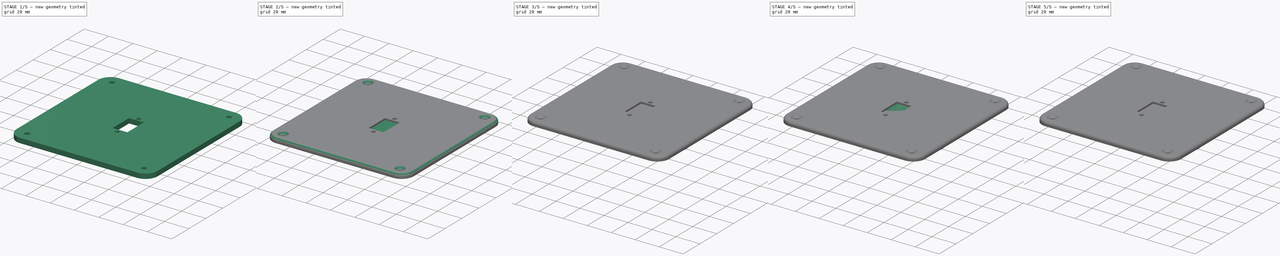
[diagram: build sequence overview — one tinted view per stage of 5, left to right]
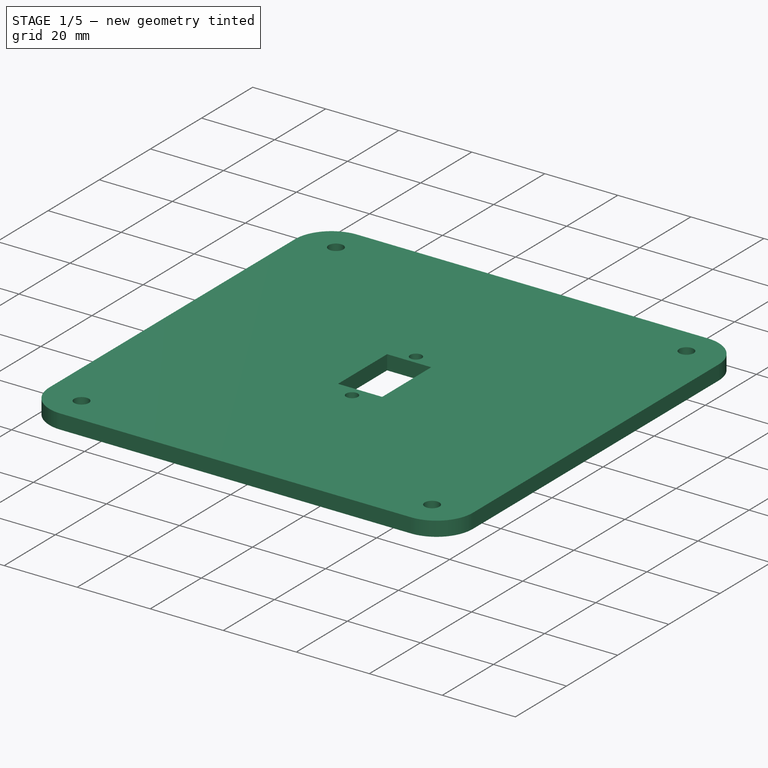
[diagram: stage 1 of 5 — iso view after this stage's code; geometry added in this stage tinted green]
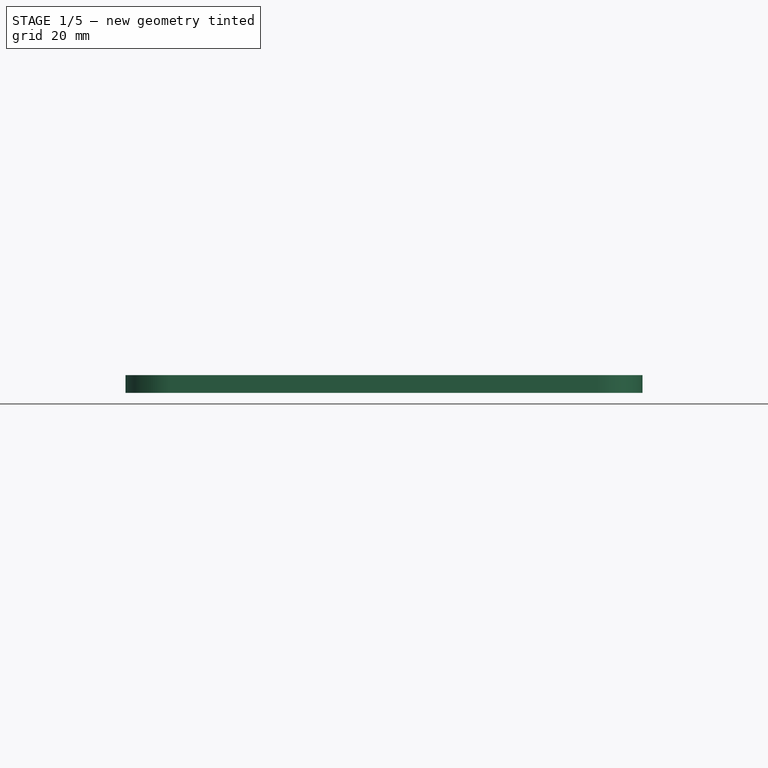
[diagram: stage 1 of 5 — front view after this stage's code; geometry added in this stage tinted green]
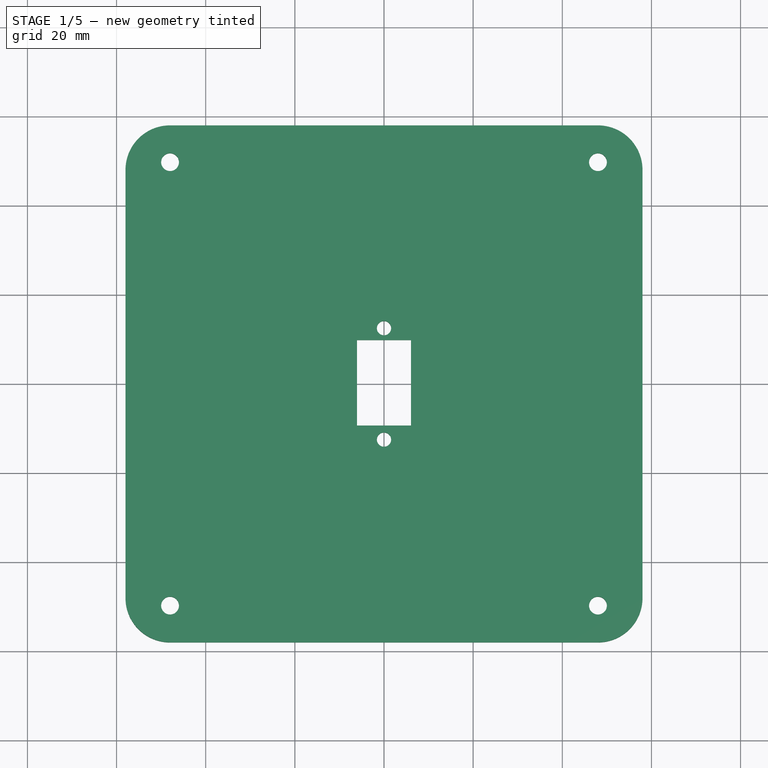
[diagram: stage 1 of 5 — top view after this stage's code; geometry added in this stage tinted green]
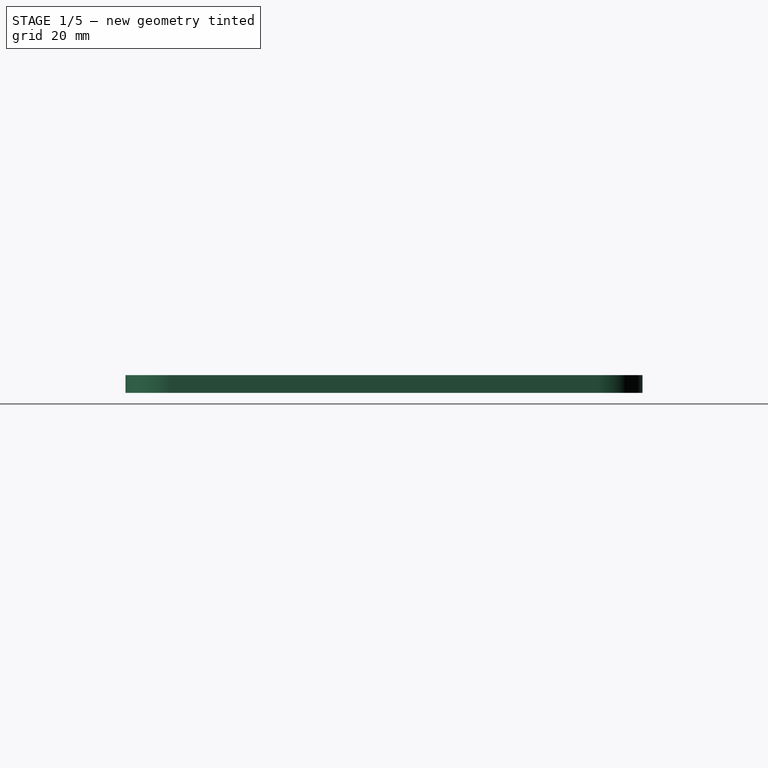
[diagram: stage 1 of 5 — right view after this stage's code; geometry added in this stage tinted green]
FCSTD DOCUMENT  (FreeCAD 1.0R39109 (Git))
Label: InsideRadioMouhnts
License: All rights reserved
LicenseURL: http://en.wikipedia.org/wiki/All_rights_reserved
objects: Sketcher::SketchObject×9, PartDesign::Pocket×5, PartDesign::Pad×4, PartDesign::Chamfer×4, PartDesign::Fillet×3, PartDesign::Body×3, App::Part×3
note: 69 computed .brp shape members not serialized (recipe doc carries the construction recipe); baked Part::Feature solids carry a one-line shape summary decoded from their .brp

FEATURE [PartDesign::Body] Body001
  AllowCompound = false
  Group = -> [Sketch002,Sketch003,Pad001,Pocket001,Chamfer001,Sketch004,Pad002,Sketch005,Pocket002,Sketch006,Pocket003,Chamfer002]
  Origin = -> Origin003
  Tip = -> Chamfer002
FEATURE [App::Part] Part001
  Group = -> [Body001]
  Origin = -> Origin002
FEATURE [Sketcher::SketchObject] Sketch007
  ArcFitTolerance = 1e-06
  AttachmentSupport = -> [XY_Plane005]
  FullyConstrained = true
  MakeInternals = false
  MapMode = 5
  sketch-geometry (4):
    g0: LineSegment StartX=-58 StartY=58 StartZ=0 EndX=-58 EndY=-58 EndZ=0
    g1: LineSegment StartX=-58 StartY=-58 StartZ=0 EndX=58 EndY=-58 EndZ=0
    g2: LineSegment StartX=58 StartY=-58 StartZ=0 EndX=58 EndY=58 EndZ=0
    g3: LineSegment StartX=58 StartY=58 StartZ=0 EndX=-58 EndY=58 EndZ=0
  constraints (11):
    c: Coincident(g0,g1)
    c: Coincident(g1,g2)
    c: Coincident(g2,g3)
    c: Coincident(g3,g0)
    c: Vertical(g0)
    c: Vertical(g2)
    c: Horizontal(g1)
    c: Horizontal(g3)
    c: Distance(g0,g2) = 116
    c: Distance(g1,g3) = 116
    c: Symmetric(g0,g2,g-1)
FEATURE [PartDesign::Pad] Pad003
  Direction = (0,0,1)
  Length = 4
  Length2 = 10
  Profile = -> Sketch007
  ReferenceAxis = -> Sketch007 [N_Axis]
  Suppressed = false
  Type = 0
FEATURE [Sketcher::SketchObject] Sketch008
  ArcFitTolerance = 1e-06
  AttachmentSupport = -> [Pad003]
  FullyConstrained = true
  MakeInternals = false
  MapMode = 5
  Placement = pos=(0,0,4) rot=(0,0,1;0rad)
  sketch-geometry (10):
    g0: LineSegment StartX=-6.05 StartY=9.85 StartZ=0 EndX=-6.05 EndY=-9.35 EndZ=0
    g1: LineSegment StartX=-6.05 StartY=-9.35 StartZ=0 EndX=6.05 EndY=-9.35 EndZ=0
    g2: LineSegment StartX=6.05 StartY=-9.35 StartZ=0 EndX=6.05 EndY=9.85 EndZ=0
    g3: LineSegment StartX=6.05 StartY=9.85 StartZ=0 EndX=-6.05 EndY=9.85 EndZ=0
    g4: Circle CenterX=0 CenterY=12.5 CenterZ=0 NormalX=0 NormalY=0 NormalZ=1 AngleXU=0 Radius=1.6
    g5: Circle CenterX=0 CenterY=-12.5 CenterZ=0 NormalX=0 NormalY=0 NormalZ=1 AngleXU=0 Radius=1.6
    g6: Circle CenterX=-48 CenterY=49.75 CenterZ=0 NormalX=0 NormalY=0 NormalZ=1 AngleXU=0 Radius=2
    g7: Circle CenterX=-48 CenterY=-49.75 CenterZ=0 NormalX=0 NormalY=0 NormalZ=1 AngleXU=0 Radius=2
    g8: Circle CenterX=48 CenterY=49.75 CenterZ=0 NormalX=0 NormalY=0 NormalZ=1 AngleXU=0 Radius=2
    g9: Circle CenterX=48 CenterY=-49.75 CenterZ=0 NormalX=0 NormalY=0 NormalZ=1 AngleXU=0 Radius=2
  constraints (30):
    c: Coincident(g0,g1)
    c: Coincident(g1,g2)
    c: Coincident(g2,g3)
    c: Coincident(g3,g0)
    c: Vertical(g0)
    c: Vertical(g2)
    c: Horizontal(g1)
    c: Horizontal(g3)
    c: Distance(g0,g2) = 12.1
    c: Distance(g1,g3) = 19.2
    c: Diameter(g4) = 3.2
    c: Diameter(g5) = 3.2
    c: DistanceY(g5,g4) = 25
    c: DistanceY(g-1,g4) = 12.5
    c: DistanceY(g-1,g0) = 9.85
    c: DistanceX(g0,g-1) = 6.05
    c: DistanceX(g4,g5) = 0
    c: DistanceX(g4,g2) = 6.05
    c: DistanceY(g8,g6) = 0
    c: DistanceY(g7,g9) = 0
    c: Equal(g8,g9)
    c: Equal(g8,g6)
    c: Equal(g8,g7)
    c: Diameter(g8) = 4
    c: DistanceX(g6,g7) = 0
    c: DistanceX(g9,g8) = 0
    c: DistanceX(g6,g-1) = 48
    c: DistanceX(g-1,g8) = 48
    c: DistanceY(g-1,g6) = 49.75
    c: DistanceY(g7,g-1) = 49.75
FEATURE [PartDesign::Pocket] Pocket004
  BaseFeature = -> Pad003
  Direction = (0,0,-1)
  Length = 5
  Length2 = 5
  Profile = -> Sketch008
  ReferenceAxis = -> Sketch008 [N_Axis]
  Suppressed = false
  Type = 1
FEATURE [PartDesign::Fillet] Fillet001
  Base = -> Pocket004 [Edge2,Edge8,Edge5,Edge1]
  BaseFeature = -> Pocket004
  Radius = 10
  Refine = true
  SupportTransform = false
  Suppressed = false
  UseAllEdges = false
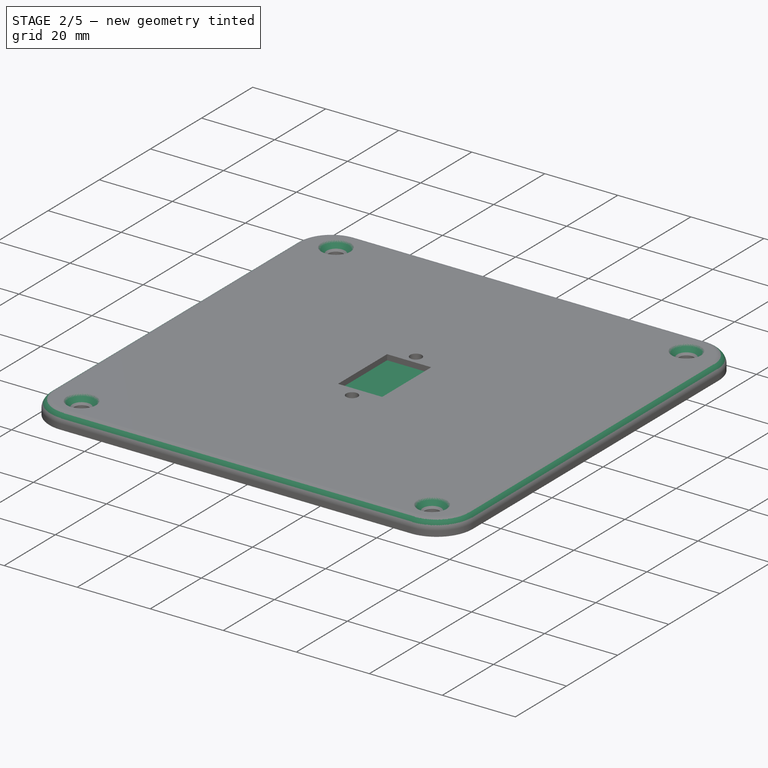
[diagram: stage 2 of 5 — iso view after this stage's code; geometry added in this stage tinted green]
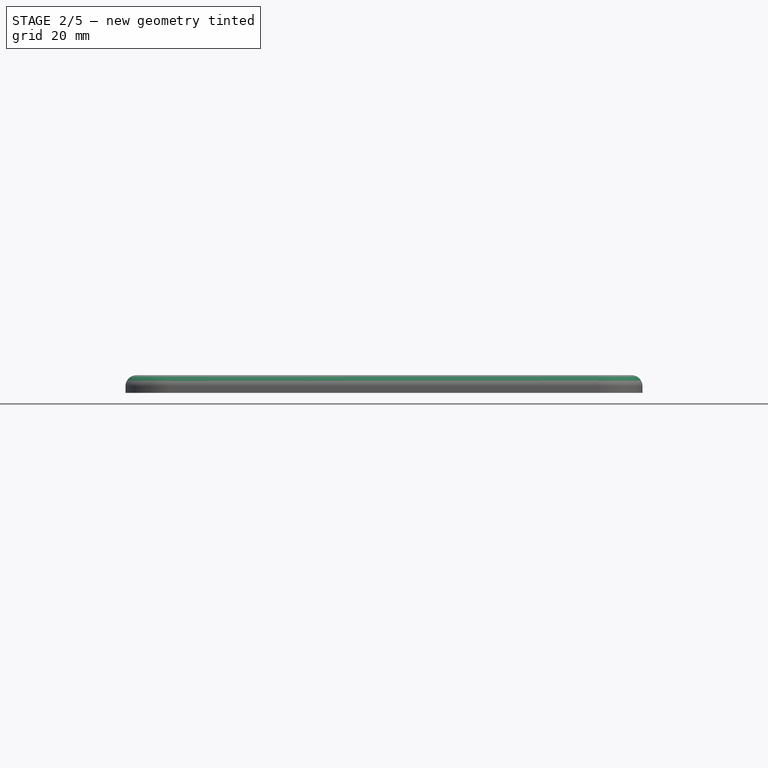
[diagram: stage 2 of 5 — front view after this stage's code; geometry added in this stage tinted green]
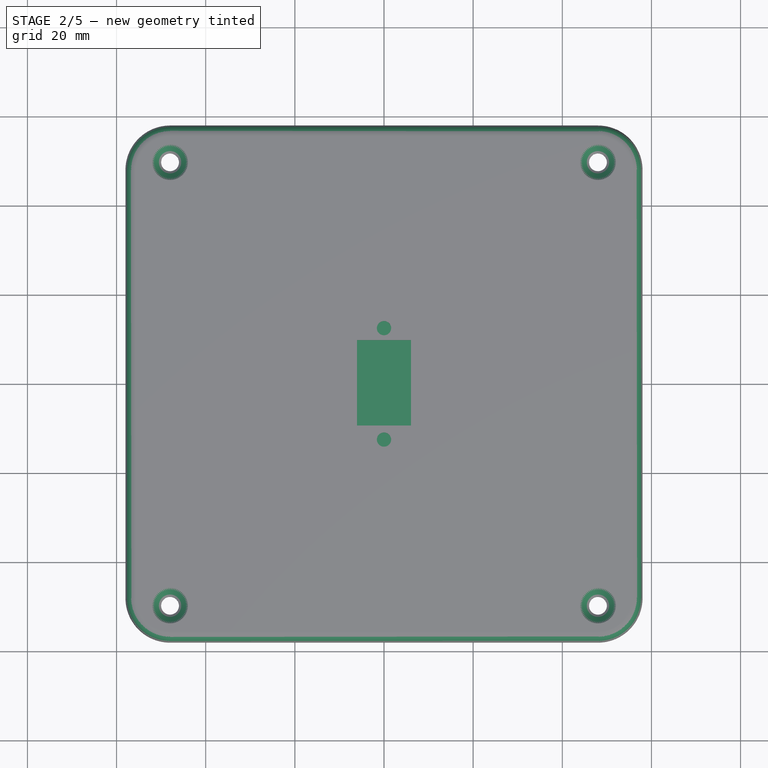
[diagram: stage 2 of 5 — top view after this stage's code; geometry added in this stage tinted green]
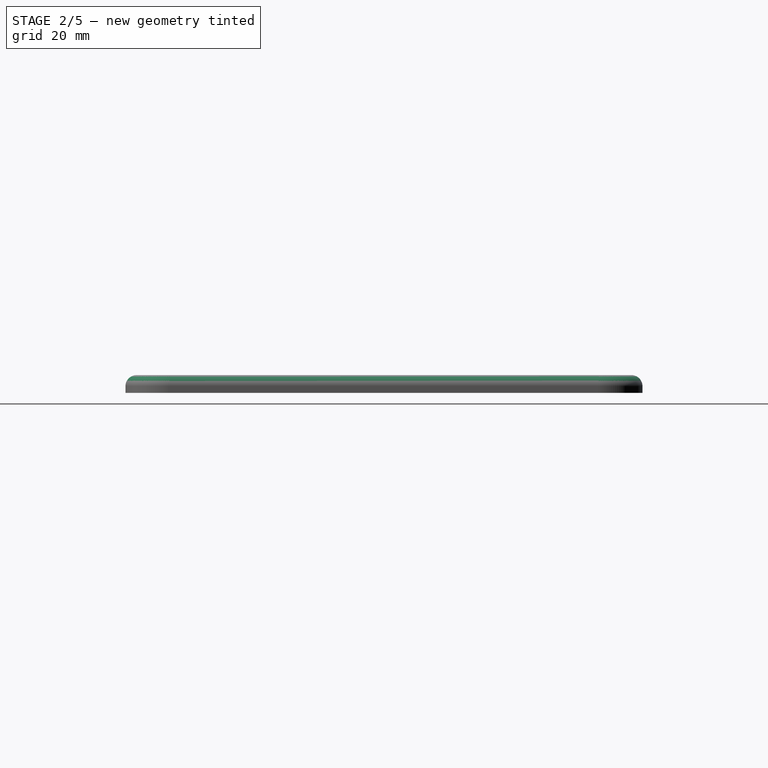
[diagram: stage 2 of 5 — right view after this stage's code; geometry added in this stage tinted green]
FEATURE [PartDesign::Body] Body
  AllowCompound = false
  Group = -> [Sketch,Pad,Sketch001,Pocket,Chamfer,Fillet]
  Origin = -> Origin001
  Tip = -> Fillet
FEATURE [App::Part] Part
  Group = -> [Body]
  Origin = -> Origin
FEATURE [Sketcher::SketchObject] Sketch003
  ArcFitTolerance = 1e-06
  AttachmentSupport = -> [XY_Plane003]
  FullyConstrained = true
  MakeInternals = false
  MapMode = 5
  sketch-geometry (4):
    g0: LineSegment StartX=-27.5 StartY=17.5 StartZ=0 EndX=-27.5 EndY=-17.5 EndZ=0
    g1: LineSegment StartX=-27.5 StartY=-17.5 StartZ=0 EndX=27.5 EndY=-17.5 EndZ=0
    g2: LineSegment StartX=27.5 StartY=-17.5 StartZ=0 EndX=27.5 EndY=17.5 EndZ=0
    g3: LineSegment StartX=27.5 StartY=17.5 StartZ=0 EndX=-27.5 EndY=17.5 EndZ=0
  constraints (11):
    c: Coincident(g0,g1)
    c: Coincident(g1,g2)
    c: Coincident(g2,g3)
    c: Coincident(g3,g0)
    c: Vertical(g0)
    c: Vertical(g2)
    c: Horizontal(g1)
    c: Horizontal(g3)
    c: Distance(g0,g2) = 55
    c: Distance(g1,g3) = 35
    c: Symmetric(g0,g2,g-1)
FEATURE [PartDesign::Pad] Pad001
  Direction = (0,0,1)
  Length = 2.5
  Length2 = 10
  Profile = -> Sketch003
  ReferenceAxis = -> Sketch003 [N_Axis]
  Suppressed = false
  Type = 0
FEATURE [PartDesign::Chamfer] Chamfer003
  Angle = 45
  Base = -> Fillet001 [Edge32,Edge40,Edge34,Edge31]
  BaseFeature = -> Fillet001
  ChamferType = 0
  FlipDirection = false
  Refine = true
  Size = 2
  Size2 = 1
  SupportTransform = false
  Suppressed = false
  UseAllEdges = false
FEATURE [PartDesign::Fillet] Fillet002
  Base = -> Chamfer003 [Edge5,Edge7,Edge9,Edge8,Edge6,Edge4,Edge2,Edge3]
  BaseFeature = -> Chamfer003
  Radius = 2.5
  Refine = true
  SupportTransform = false
  Suppressed = false
  UseAllEdges = false
FEATURE [PartDesign::Body] Body002
  AllowCompound = false
  Group = -> [Sketch007,Pad003,Sketch008,Pocket004,Fillet001,Chamfer003,Fillet002]
  Origin = -> Origin005
  Tip = -> Fillet002
FEATURE [App::Part] Part002  label="CO2Cover"
  Group = -> [Body002]
  Origin = -> Origin004
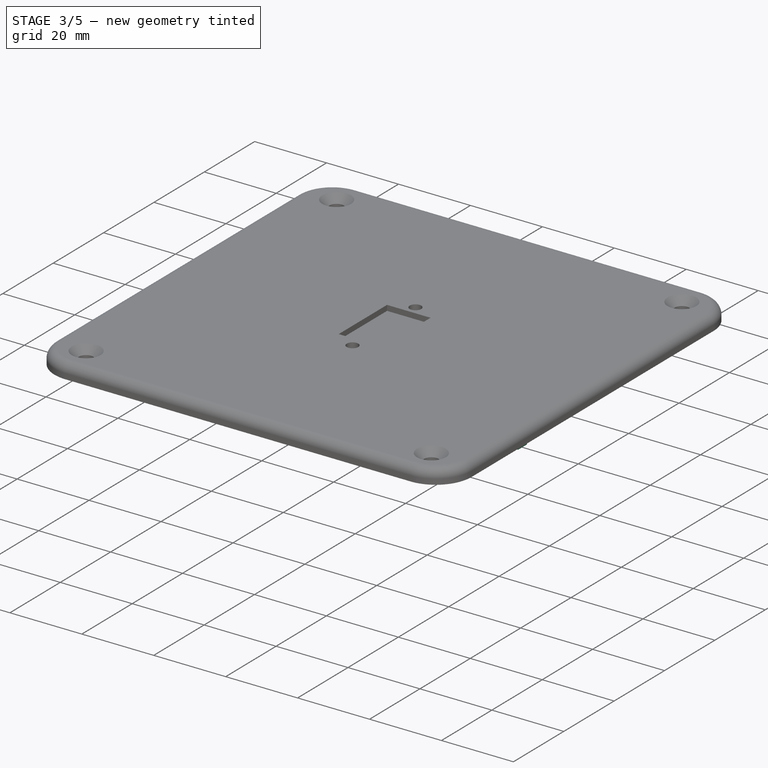
[diagram: stage 3 of 5 — iso view after this stage's code; geometry added in this stage tinted green]
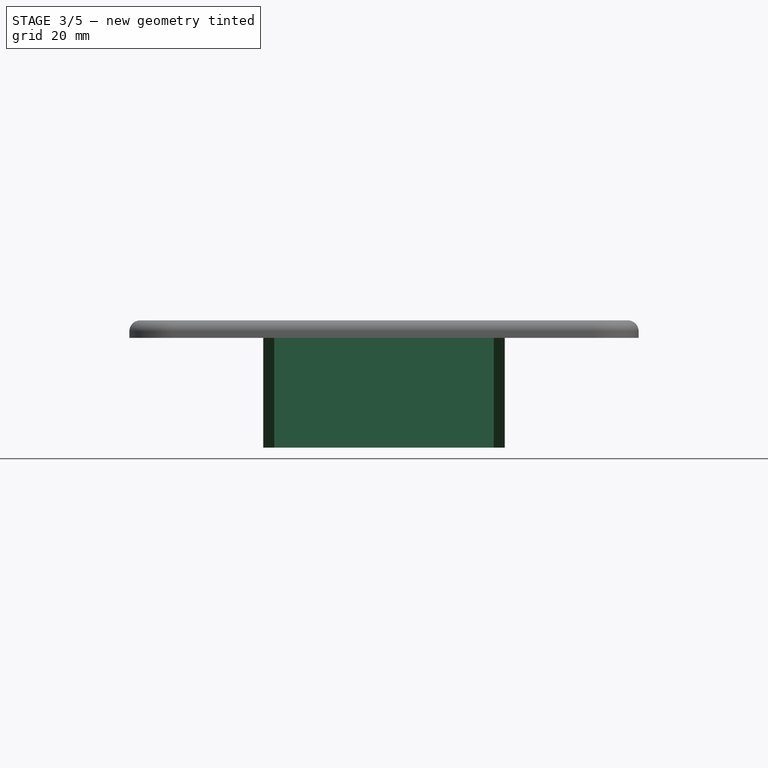
[diagram: stage 3 of 5 — front view after this stage's code; geometry added in this stage tinted green]
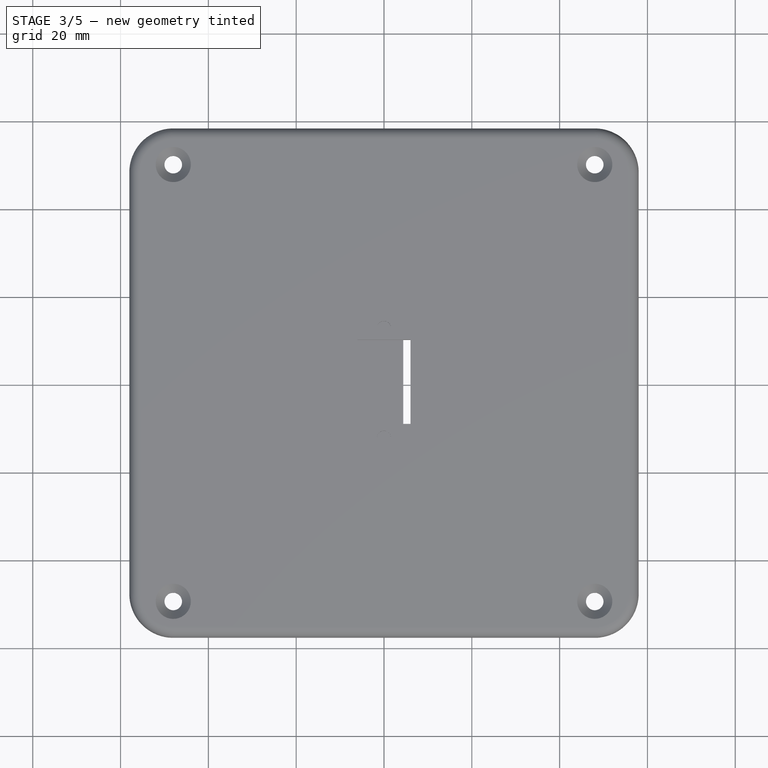
[diagram: stage 3 of 5 — top view after this stage's code; geometry added in this stage tinted green]
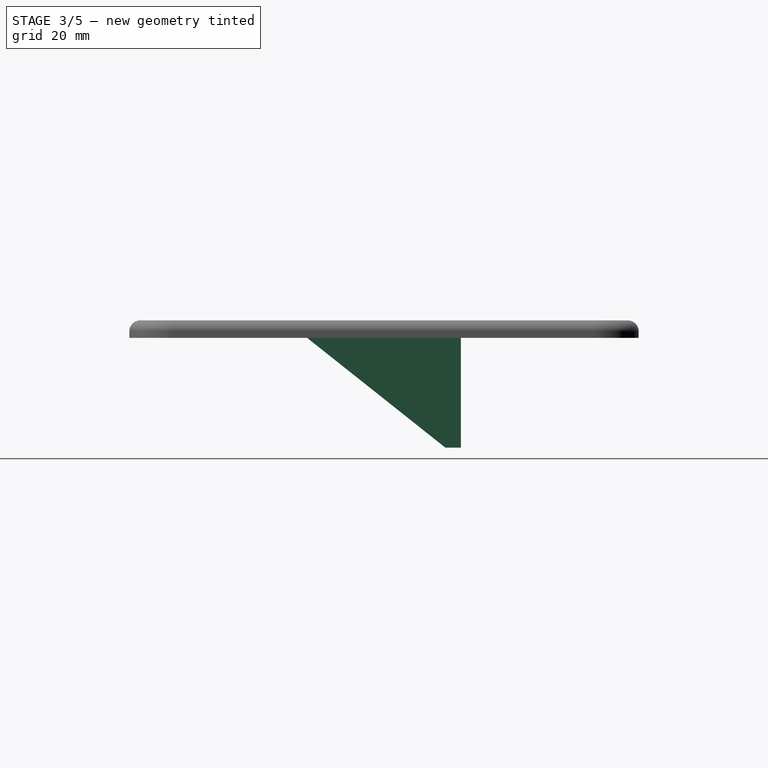
[diagram: stage 3 of 5 — right view after this stage's code; geometry added in this stage tinted green]
FEATURE [Sketcher::SketchObject] Sketch002
  ArcFitTolerance = 1e-06
  AttachmentSupport = -> [Pad001]
  FullyConstrained = true
  MakeInternals = false
  MapMode = 5
  Placement = pos=(0,0,2.5) rot=(0,0,1;0rad)
  sketch-geometry (12):
    g0: LineSegment StartX=4.376 StartY=9.85 StartZ=0 EndX=4.376 EndY=-9.35 EndZ=0
    g1: LineSegment StartX=4.376 StartY=-9.35 StartZ=0 EndX=16.476 EndY=-9.35 EndZ=0
    g2: LineSegment StartX=16.476 StartY=-9.35 StartZ=0 EndX=16.476 EndY=9.85 EndZ=0
    g3: LineSegment StartX=16.476 StartY=9.85 StartZ=0 EndX=4.376 EndY=9.85 EndZ=0
    g4: Circle CenterX=10.426 CenterY=12.5 CenterZ=0 NormalX=0 NormalY=0 NormalZ=1 AngleXU=0 Radius=1.6
    g5: Circle CenterX=10.426 CenterY=-12.5 CenterZ=0 NormalX=0 NormalY=0 NormalZ=1 AngleXU=0 Radius=1.6
    g6: LineSegment StartX=-15.535 StartY=7.875 StartZ=0 EndX=-15.535 EndY=-7.875 EndZ=0
    g7: LineSegment StartX=-15.535 StartY=-7.875 StartZ=0 EndX=-7.235 EndY=-7.875 EndZ=0
    g8: LineSegment StartX=-7.235 StartY=-7.875 StartZ=0 EndX=-7.235 EndY=7.875 EndZ=0
    g9: LineSegment StartX=-7.235 StartY=7.875 StartZ=0 EndX=-15.535 EndY=7.875 EndZ=0
    g10: Circle CenterX=-11.385 CenterY=10.25 CenterZ=0 NormalX=0 NormalY=0 NormalZ=1 AngleXU=0 Radius=1.35
    g11: Circle CenterX=-11.385 CenterY=-10.25 CenterZ=0 NormalX=0 NormalY=0 NormalZ=1 AngleXU=0 Radius=1.35
  constraints (36):
    c: Coincident(g0,g1)
    c: Coincident(g1,g2)
    c: Coincident(g2,g3)
    c: Coincident(g3,g0)
    c: Vertical(g0)
    c: Vertical(g2)
    c: Horizontal(g1)
    c: Horizontal(g3)
    c: Distance(g0,g2) = 12.1
    c: Distance(g1,g3) = 19.2
    c: Diameter(g4) = 3.2
    c: Diameter(g5) = 3.2
    c: DistanceY(g5,g4) = 25
    c: DistanceY(g-1,g4) = 12.5
    c: Coincident(g6,g7)
    c: Coincident(g7,g8)
    c: Coincident(g8,g9)
    c: Coincident(g9,g6)
    c: Vertical(g6)
    c: Vertical(g8)
    c: Horizontal(g7)
    c: Horizontal(g9)
    c: Distance(g6,g8) = 8.3
    c: Distance(g7,g9) = 15.75
    c: DistanceY(g-1,g6) = 7.875
    c: DistanceY(g-1,g0) = 9.85
    c: DistanceX(g8,g0) = 11.611
    c: Diameter(g10) = 2.7
    c: Diameter(g11) = 2.7
    c: DistanceY(g11,g10) = 20.5
    c: DistanceX(g10,g11) = 0
    c: DistanceY(g-1,g10) = 10.25
    c: DistanceX(g11,g0) = 15.761
    c: DistanceX(g4,g5) = 0
    c: DistanceX(g4,g2) = 6.05
    c: DistanceX(g8,g-1) = 7.235
FEATURE [PartDesign::Pocket] Pocket001
  BaseFeature = -> Pad001
  Direction = (0,0,-1)
  Length = 5
  Length2 = 5
  Profile = -> Sketch002
  ReferenceAxis = -> Sketch002 [N_Axis]
  Suppressed = false
  Type = 1
FEATURE [PartDesign::Chamfer] Chamfer001
  Angle = 45
  Base = -> Pocket001 [Edge31,Edge25]
  BaseFeature = -> Pocket001
  ChamferType = 0
  FlipDirection = false
  Size = 1
  Size2 = 1
  SupportTransform = false
  Suppressed = false
  UseAllEdges = false
FEATURE [Sketcher::SketchObject] Sketch004
  ArcFitTolerance = 1e-06
  AttachmentSupport = -> [Chamfer001]
  FullyConstrained = true
  MakeInternals = false
  MapMode = 5
  Placement = pos=(0,0,0) rot=(1,0,0;3.14159rad)
  sketch-geometry (8):
    g0: LineSegment StartX=-27.5 StartY=17.5 StartZ=0 EndX=-27.5 EndY=-17.5 EndZ=0
    g1: LineSegment StartX=-27.5 StartY=-17.5 StartZ=0 EndX=27.5 EndY=-17.5 EndZ=0
    g2: LineSegment StartX=27.5 StartY=-17.5 StartZ=0 EndX=27.5 EndY=17.5 EndZ=0
    g3: LineSegment StartX=27.5 StartY=17.5 StartZ=0 EndX=25 EndY=17.5 EndZ=0
    g4: LineSegment StartX=25 StartY=17.5 StartZ=0 EndX=25 EndY=-15 EndZ=0
    g5: LineSegment StartX=25 StartY=-15 StartZ=0 EndX=-25 EndY=-15 EndZ=0
    g6: LineSegment StartX=-25 StartY=-15 StartZ=0 EndX=-25 EndY=17.5 EndZ=0
    g7: LineSegment StartX=-25 StartY=17.5 StartZ=0 EndX=-27.5 EndY=17.5 EndZ=0
  constraints (24):
    c: Vertical(g0)
    c: Coincident(g0,g1)
    c: Horizontal(g1)
    c: Coincident(g1,g2)
    c: Vertical(g2)
    c: Coincident(g2,g3)
    c: Horizontal(g3)
    c: Coincident(g3,g4)
    c: Vertical(g4)
    c: Coincident(g4,g5)
    c: Horizontal(g5)
    c: Coincident(g5,g6)
    c: Vertical(g6)
    c: Coincident(g6,g7)
    c: Coincident(g7,g0)
    c: Horizontal(g7)
    c: DistanceX(g7,g7) = 2.5
    c: DistanceX(g3,g3) = 2.5
    c: DistanceX(g0,g2) = 55
    c: DistanceX(g0,g-1) = 27.5
    c: DistanceY(g-1,g0) = 17.5
    c: DistanceY(g3,g6) = 0
    c: DistanceY(g0,g0) = 35
    c: DistanceY(g6,g6) = 32.5
FEATURE [PartDesign::Pad] Pad002
  BaseFeature = -> Chamfer001
  Direction = (0,0,-1)
  Length = 25
  Length2 = 10
  Profile = -> Sketch004
  ReferenceAxis = -> Sketch004 [N_Axis]
  Suppressed = false
  Type = 0
FEATURE [Sketcher::SketchObject] Sketch005
  ArcFitTolerance = 1e-06
  AttachmentSupport = -> [Pad002]
  FullyConstrained = true
  MakeInternals = false
  MapMode = 5
  Placement = pos=(-27.5,0,0) rot=(0.57735,-0.57735,-0.57735;2.0944rad)
  sketch-geometry (4):
    g0: LineSegment StartX=17.5 StartY=0 StartZ=0 EndX=-14.518 EndY=-25.425 EndZ=0
    g1: LineSegment StartX=-14.518 StartY=-25.425 StartZ=0 EndX=18.872 EndY=-25.425 EndZ=0
    g2: LineSegment StartX=18.872 StartY=-25.425 StartZ=0 EndX=18.872 EndY=0 EndZ=0
    g3: LineSegment StartX=18.872 StartY=0 StartZ=0 EndX=17.5 EndY=0 EndZ=0
  constraints (12):
    c: PointOnObject(g0,g-1)
    c: Coincident(g0,g1)
    c: Horizontal(g1)
    c: Coincident(g1,g2)
    c: PointOnObject(g2,g-1)
    c: Vertical(g2)
    c: Coincident(g2,g3)
    c: Coincident(g3,g0)
    c: DistanceX(g1,g1) = 33.39
    c: DistanceX(g-1,g1) = 18.872
    c: DistanceY(g2,g2) = 25.425
    c: DistanceX(g-1,g0) = 17.5
FEATURE [PartDesign::Pocket] Pocket002
  BaseFeature = -> Pad002
  Direction = (1,0,0)
  Length = 5
  Length2 = 5
  Profile = -> Sketch005
  ReferenceAxis = -> Sketch005 [N_Axis]
  Suppressed = false
  Type = 1
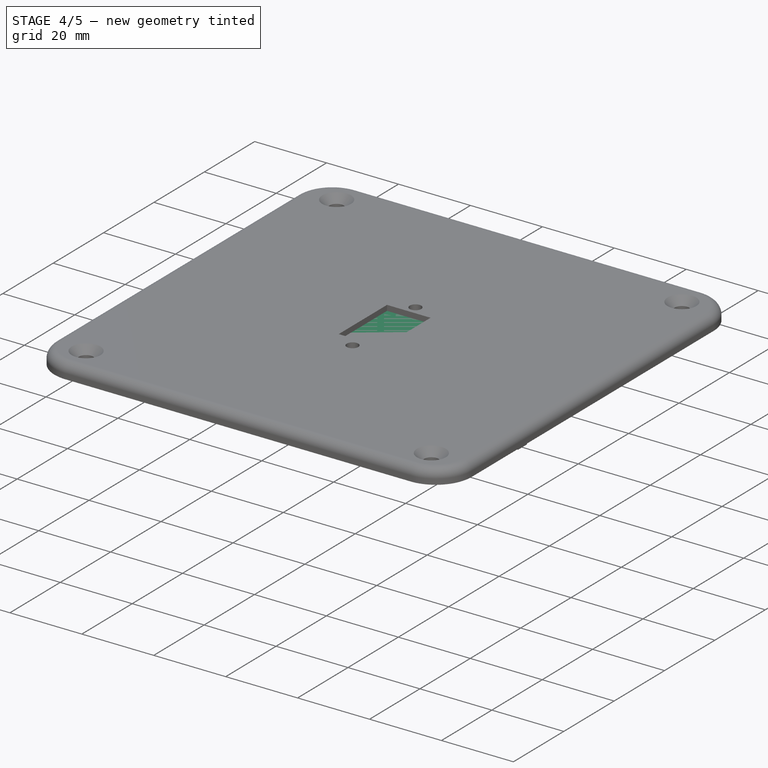
[diagram: stage 4 of 5 — iso view after this stage's code; geometry added in this stage tinted green]
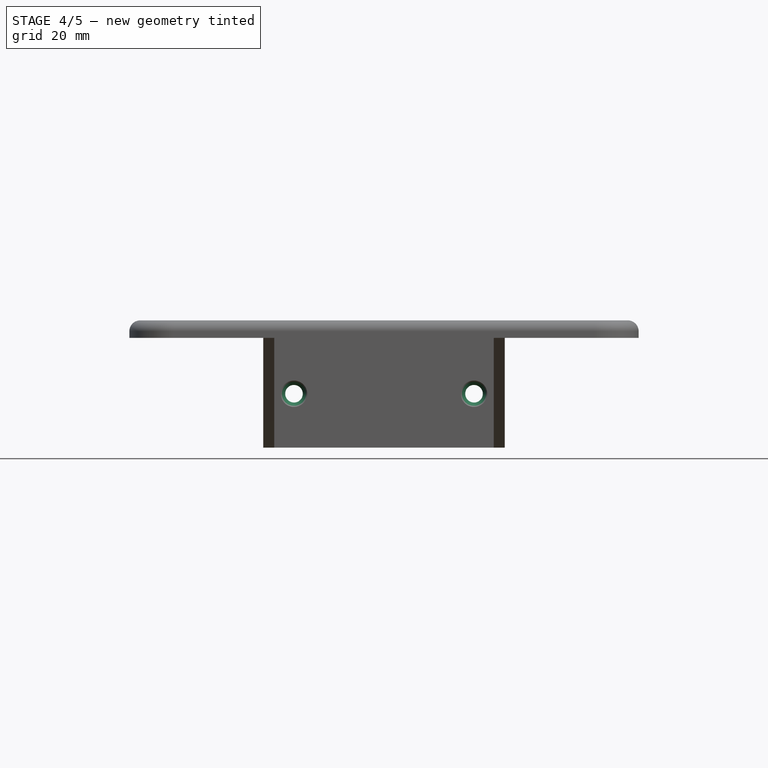
[diagram: stage 4 of 5 — front view after this stage's code; geometry added in this stage tinted green]
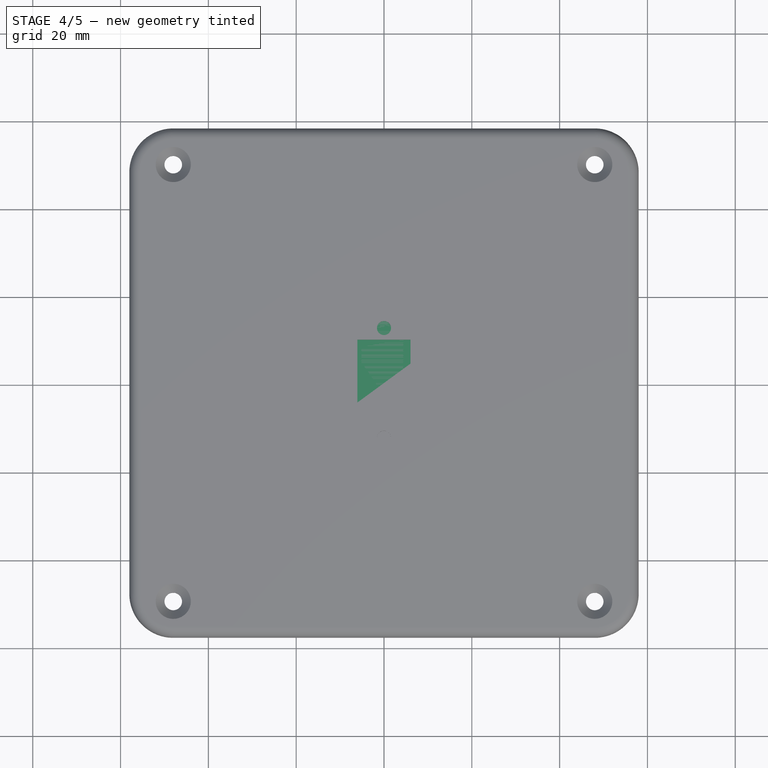
[diagram: stage 4 of 5 — top view after this stage's code; geometry added in this stage tinted green]
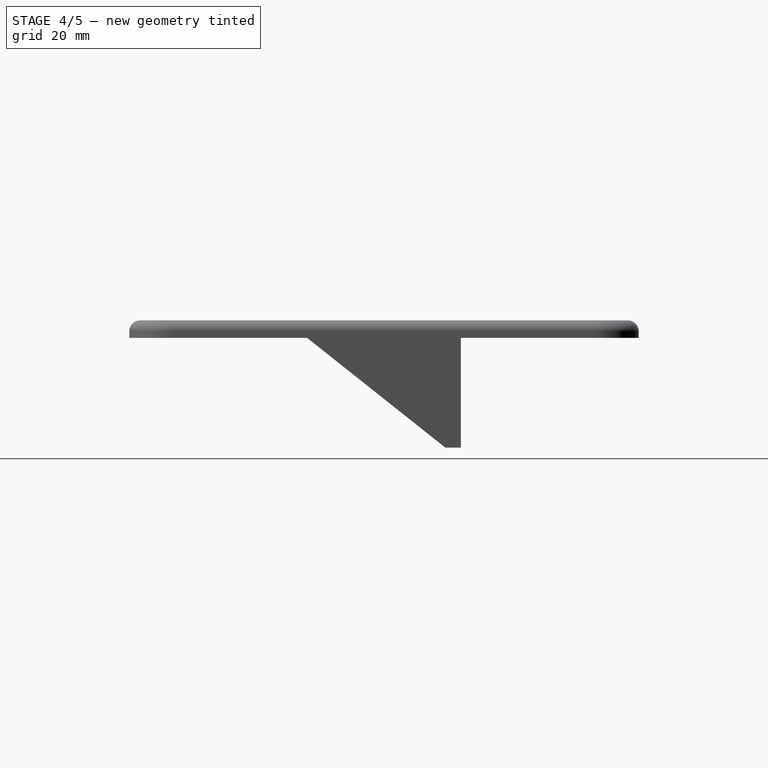
[diagram: stage 4 of 5 — right view after this stage's code; geometry added in this stage tinted green]
FEATURE [Sketcher::SketchObject] Sketch
  ArcFitTolerance = 1e-06
  AttachmentSupport = -> [XY_Plane001]
  FullyConstrained = true
  MakeInternals = false
  MapMode = 5
  sketch-geometry (4):
    g0: LineSegment StartX=-37.5 StartY=27.5 StartZ=0 EndX=-37.5 EndY=-27.5 EndZ=0
    g1: LineSegment StartX=-37.5 StartY=-27.5 StartZ=0 EndX=37.5 EndY=-27.5 EndZ=0
    g2: LineSegment StartX=37.5 StartY=-27.5 StartZ=0 EndX=37.5 EndY=27.5 EndZ=0
    g3: LineSegment StartX=37.5 StartY=27.5 StartZ=0 EndX=-37.5 EndY=27.5 EndZ=0
  constraints (11):
    c: Coincident(g0,g1)
    c: Coincident(g1,g2)
    c: Coincident(g2,g3)
    c: Coincident(g3,g0)
    c: Vertical(g0)
    c: Vertical(g2)
    c: Horizontal(g1)
    c: Horizontal(g3)
    c: Distance(g0,g2) = 75
    c: Distance(g1,g3) = 55
    c: Symmetric(g0,g2,g-1)
FEATURE [PartDesign::Pad] Pad
  Direction = (0,0,1)
  Length = 2.5
  Length2 = 10
  Profile = -> Sketch
  ReferenceAxis = -> Sketch [N_Axis]
  Suppressed = false
  Type = 0
FEATURE [Sketcher::SketchObject] Sketch006
  ArcFitTolerance = 1e-06
  AttachmentSupport = -> [Pocket002]
  FullyConstrained = true
  MakeInternals = false
  MapMode = 5
  Placement = pos=(0,15,0) rot=(1,0,0;1.5708rad)
  sketch-geometry (2):
    g0: Circle CenterX=-20.5 CenterY=-12.72 CenterZ=0 NormalX=0 NormalY=0 NormalZ=1 AngleXU=0 Radius=2
    g1: Circle CenterX=20.5 CenterY=-12.72 CenterZ=0 NormalX=0 NormalY=0 NormalZ=1 AngleXU=0 Radius=2
  constraints (6):
    c: Diameter(g0) = 4
    c: Diameter(g1) = 4
    c: DistanceY(g1,g0) = 0
    c: DistanceX(g0,g1) = 41
    c: DistanceX(g-1,g1) = 20.5
    c: DistanceY(g0,g-1) = 12.72
FEATURE [PartDesign::Pocket] Pocket003
  BaseFeature = -> Pocket002
  Direction = (0,1,-2e-16)
  Length = 5
  Length2 = 5
  Profile = -> Sketch006
  ReferenceAxis = -> Sketch006 [N_Axis]
  Suppressed = false
  Type = 1
FEATURE [PartDesign::Chamfer] Chamfer002
  Angle = 45
  Base = -> Pocket003 [Edge76,Edge74]
  BaseFeature = -> Pocket003
  ChamferType = 0
  FlipDirection = false
  Size = 1
  Size2 = 1
  SupportTransform = false
  Suppressed = false
  UseAllEdges = false
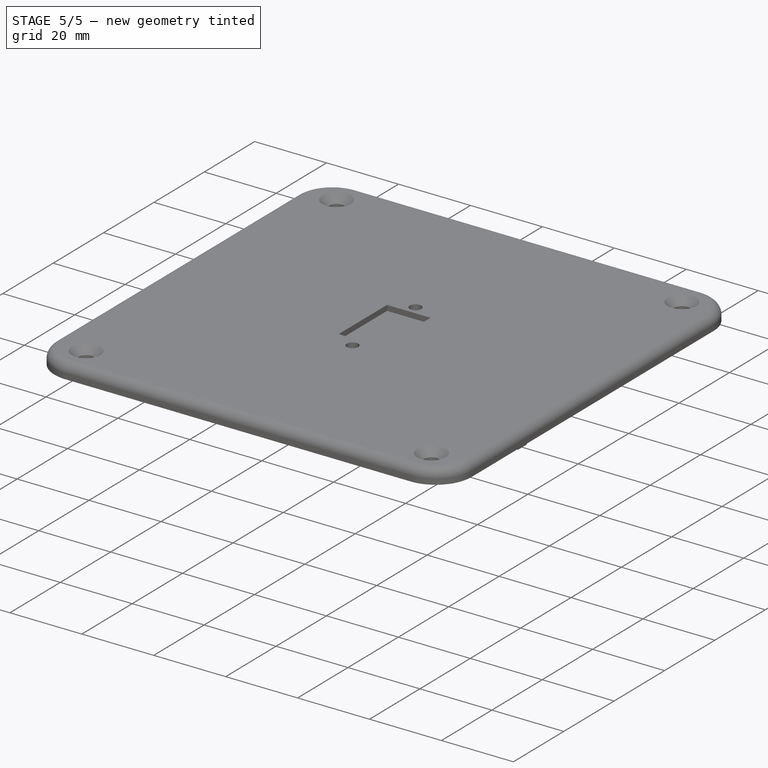
[diagram: stage 5 of 5 — iso view after this stage's code; geometry added in this stage tinted green]
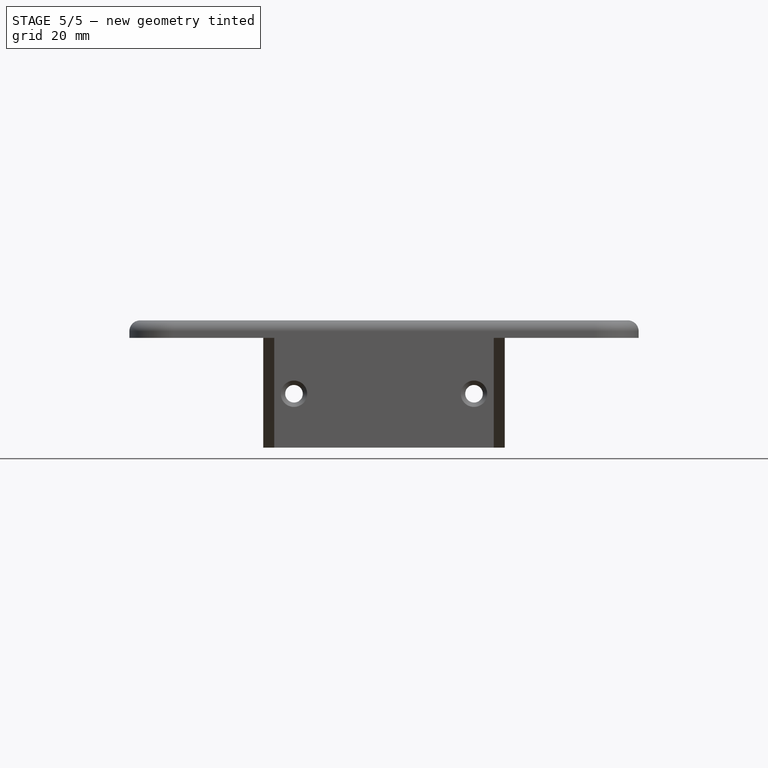
[diagram: stage 5 of 5 — front view after this stage's code; geometry added in this stage tinted green]
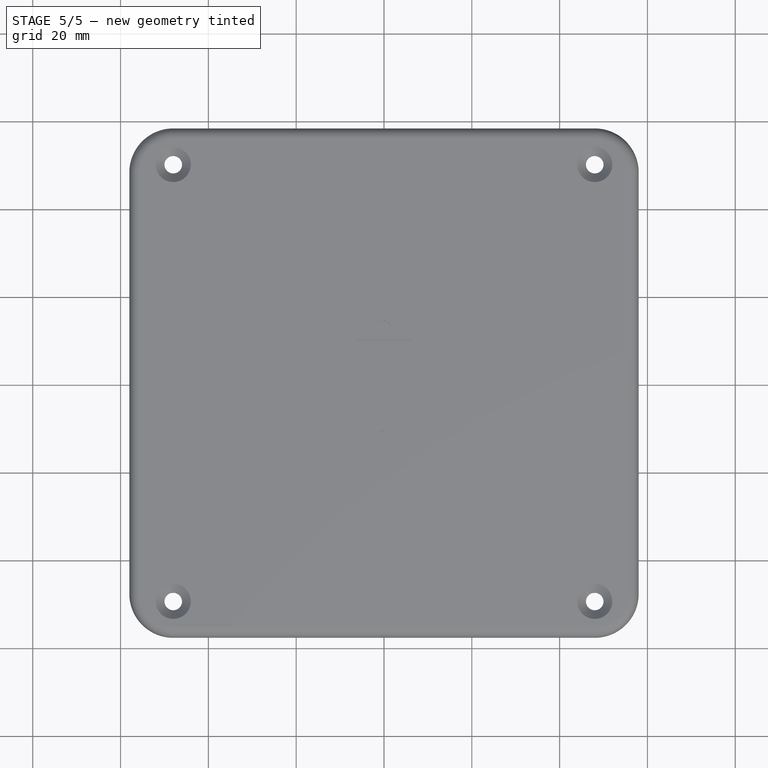
[diagram: stage 5 of 5 — top view after this stage's code; geometry added in this stage tinted green]
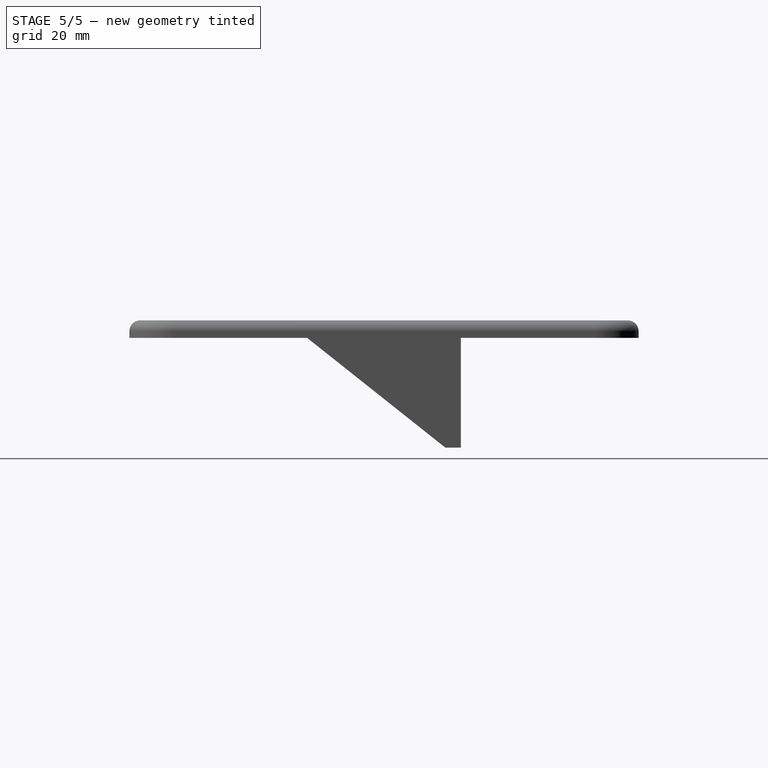
[diagram: stage 5 of 5 — right view after this stage's code; geometry added in this stage tinted green]
FEATURE [Sketcher::SketchObject] Sketch001
  ArcFitTolerance = 1e-06
  AttachmentSupport = -> [Pad]
  FullyConstrained = true
  MakeInternals = false
  MapMode = 5
  Placement = pos=(0,0,2.5) rot=(0,0,1;0rad)
  sketch-geometry (17):
    g0: Circle CenterX=22 CenterY=0 CenterZ=0 NormalX=0 NormalY=0 NormalZ=1 AngleXU=0 Radius=8.1
    g1: LineSegment StartX=-8.578 StartY=9.85 StartZ=0 EndX=-8.578 EndY=-9.35 EndZ=0
    g2: LineSegment StartX=-8.578 StartY=-9.35 StartZ=0 EndX=3.522 EndY=-9.35 EndZ=0
    g3: LineSegment StartX=3.522 StartY=-9.35 StartZ=0 EndX=3.522 EndY=9.85 EndZ=0
    g4: LineSegment StartX=3.522 StartY=9.85 StartZ=0 EndX=-8.578 EndY=9.85 EndZ=0
    g5: Circle CenterX=-2.528 CenterY=12.5 CenterZ=0 NormalX=0 NormalY=0 NormalZ=1 AngleXU=0 Radius=1.6
    g6: Circle CenterX=-2.528 CenterY=-12.5 CenterZ=0 NormalX=0 NormalY=0 NormalZ=1 AngleXU=0 Radius=1.6
    g7: LineSegment StartX=-28.489 StartY=7.875 StartZ=0 EndX=-28.489 EndY=-7.875 EndZ=0
    g8: LineSegment StartX=-28.489 StartY=-7.875 StartZ=0 EndX=-20.189 EndY=-7.875 EndZ=0
    g9: LineSegment StartX=-20.189 StartY=-7.875 StartZ=0 EndX=-20.189 EndY=7.875 EndZ=0
    g10: LineSegment StartX=-20.189 StartY=7.875 StartZ=0 EndX=-28.489 EndY=7.875 EndZ=0
    g11: Circle CenterX=-24.339 CenterY=10.25 CenterZ=0 NormalX=0 NormalY=0 NormalZ=1 AngleXU=0 Radius=1.35
    g12: Circle CenterX=-24.339 CenterY=-10.25 CenterZ=0 NormalX=0 NormalY=0 NormalZ=1 AngleXU=0 Radius=1.35
    g13: Circle CenterX=-33.5 CenterY=23.5 CenterZ=0 NormalX=0 NormalY=0 NormalZ=1 AngleXU=0 Radius=1.6
    g14: Circle CenterX=-33.5 CenterY=-23.5 CenterZ=0 NormalX=0 NormalY=0 NormalZ=1 AngleXU=0 Radius=1.6
    g15: Circle CenterX=32 CenterY=23.5 CenterZ=0 NormalX=0 NormalY=0 NormalZ=1 AngleXU=0 Radius=1.6
    g16: Circle CenterX=32 CenterY=-23.5 CenterZ=0 NormalX=0 NormalY=0 NormalZ=1 AngleXU=0 Radius=1.6
  constraints (51):
    c: Diameter(g0) = 16.2
    c: Coincident(g1,g2)
    c: Coincident(g2,g3)
    c: Coincident(g3,g4)
    c: Coincident(g4,g1)
    c: Vertical(g1)
    c: Vertical(g3)
    c: Horizontal(g2)
    c: Horizontal(g4)
    c: Distance(g1,g3) = 12.1
    c: Distance(g2,g4) = 19.2
    c: Diameter(g5) = 3.2
    c: Diameter(g6) = 3.2
    c: DistanceY(g6,g5) = 25
    c: DistanceY(g-1,g5) = 12.5
    c: Coincident(g7,g8)
    c: Coincident(g8,g9)
    c: Coincident(g9,g10)
    c: Coincident(g10,g7)
    c: Vertical(g7)
    c: Vertical(g9)
    c: Horizontal(g8)
    c: Horizontal(g10)
    c: Distance(g7,g9) = 8.3
    c: Distance(g8,g10) = 15.75
    c: DistanceY(g-1,g7) = 7.875
    c: DistanceY(g-1,g1) = 9.85
    c: DistanceX(g1,g-1) = 8.578
    c: DistanceX(g9,g1) = 11.611
    c: Diameter(g11) = 2.7
    c: Diameter(g12) = 2.7
    c: DistanceY(g12,g11) = 20.5
    c: DistanceX(g11,g12) = 0
    c: DistanceY(g-1,g11) = 10.25
    c: DistanceX(g12,g1) = 15.761
    c: DistanceX(g2,g0) = 18.478
    c: DistanceX(g5,g6) = 0
    c: DistanceX(g5,g3) = 6.05
    c: DistanceY(g-1,g0) = 0
    c: DistanceY(g15,g13) = 0
    c: DistanceY(g14,g16) = 0
    c: Equal(g15,g16)
    c: Equal(g15,g13)
    c: Equal(g15,g14)
    c: Diameter(g15) = 3.2
    c: DistanceX(g13,g14) = 0
    c: DistanceX(g16,g15) = 0
    c: DistanceX(g13,g-1) = 33.5
    c: DistanceX(g-1,g15) = 32
    c: DistanceY(g-1,g13) = 23.5
    c: DistanceY(g14,g-1) = 23.5
FEATURE [PartDesign::Pocket] Pocket
  BaseFeature = -> Pad
  Direction = (0,0,-1)
  Length = 5
  Length2 = 5
  Profile = -> Sketch001
  ReferenceAxis = -> Sketch001 [N_Axis]
  Suppressed = false
  Type = 1
FEATURE [PartDesign::Chamfer] Chamfer
  Angle = 45
  Base = -> Pocket [Edge44,Edge46,Edge30,Edge33,Edge38,Edge31]
  BaseFeature = -> Pocket
  ChamferType = 0
  FlipDirection = false
  Size = 1
  Size2 = 1
  SupportTransform = false
  Suppressed = false
  UseAllEdges = false
FEATURE [PartDesign::Fillet] Fillet
  Base = -> Chamfer [Edge2,Edge3,Edge5,Edge4]
  BaseFeature = -> Chamfer
  Radius = 1
  SupportTransform = false
  Suppressed = false
  UseAllEdges = false
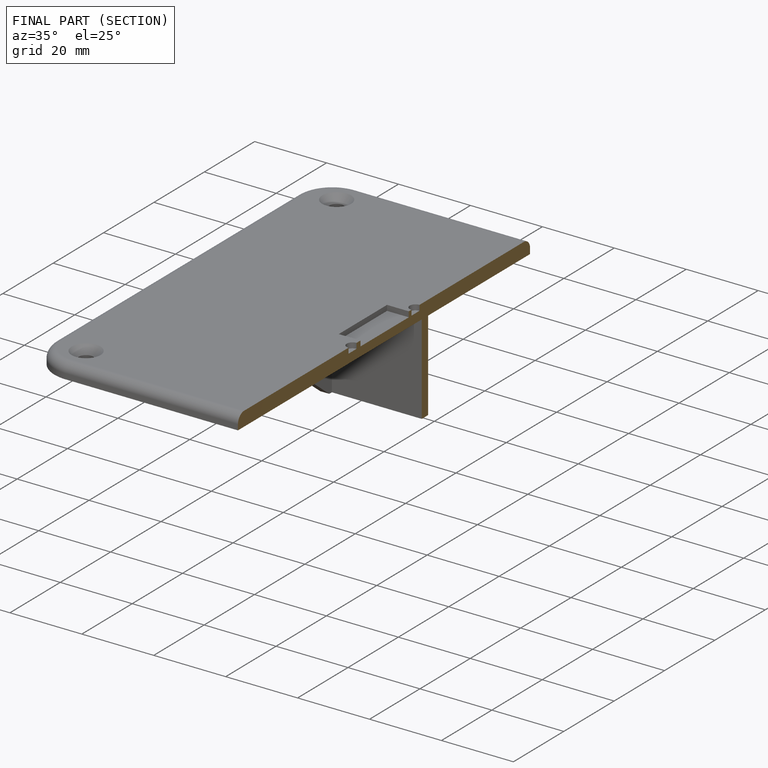
[diagram: finished part — half-section view (interior)]
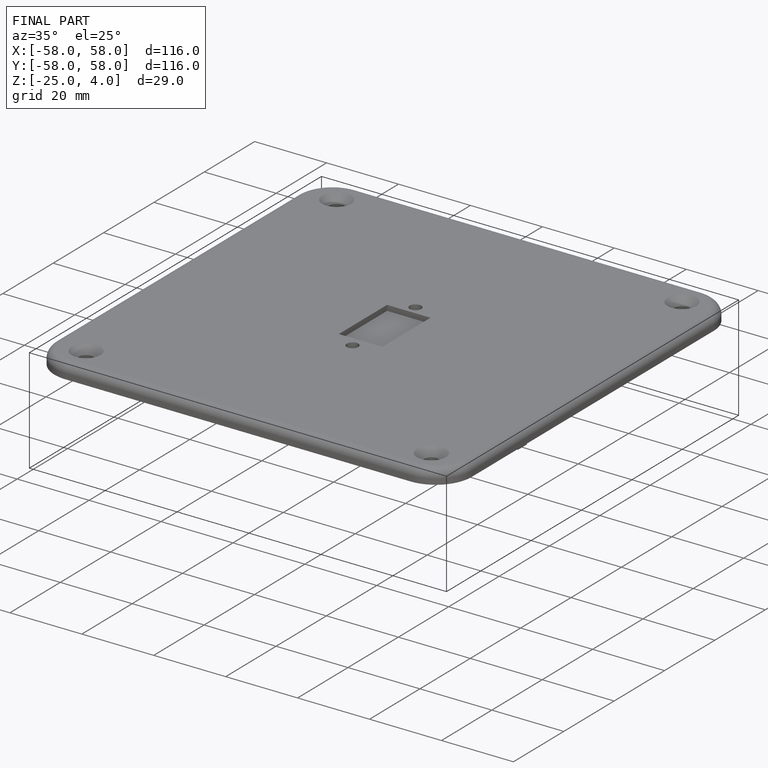
[diagram: finished part — iso view with bounding-box wireframe]
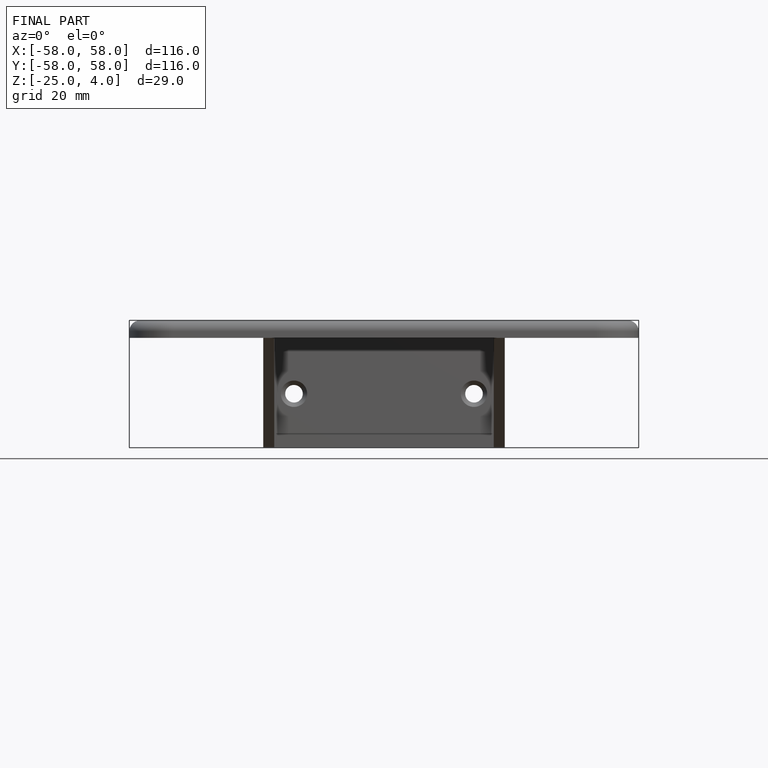
[diagram: finished part — front view with bounding-box wireframe]
